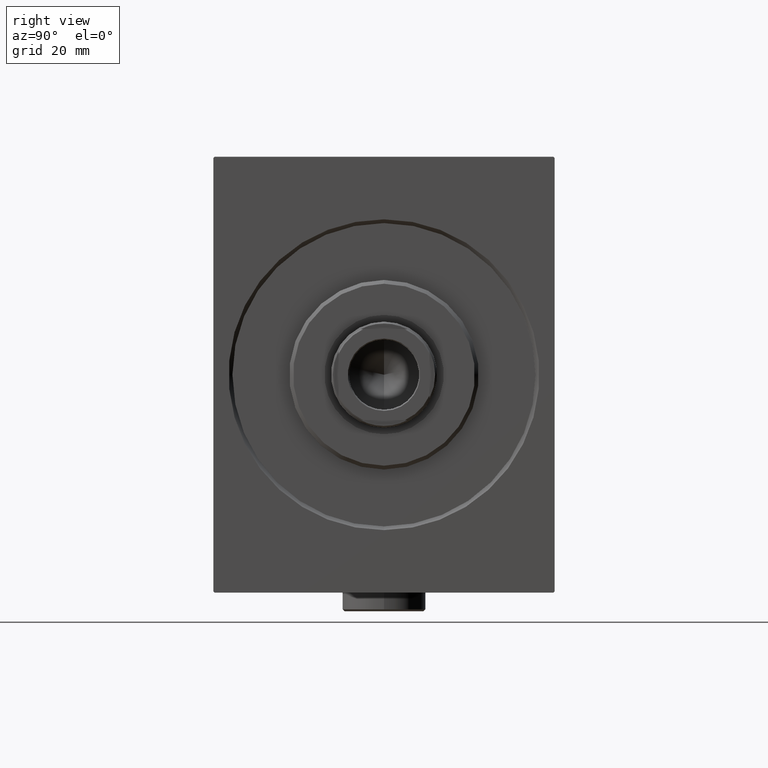
[diagram: clean part render]
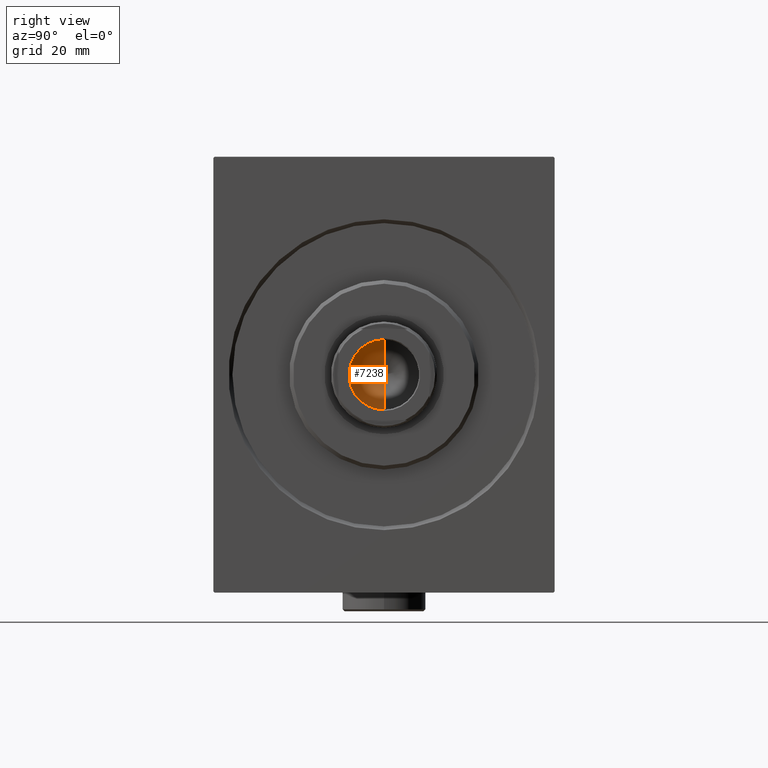
[diagram: same view with one face highlighted and labeled with its STEP entity id]
A machine part, right view. The second image highlights one B-rep face of the part: STEP entity #7238.
In plain terms, the highlighted conical surface has half-angle 59 deg.
Its self-contained STEP definition (entity closure, byte-faithful):
#970 = EDGE_CURVE ( 'NONE', #5464, #22446, #25014, .T. ) ;
#3323 = EDGE_CURVE ( 'NONE', #5464, #20763, #3812, .T. ) ;
#3812 = LINE ( 'NONE', #37891, #18380 ) ;
#5464 = VERTEX_POINT ( 'NONE', #30935 ) ;
#6535 = CIRCLE ( 'NONE', #10778, 9.249999999999994671 ) ;
#7104 = CONICAL_SURFACE ( 'NONE', #31992, 9.249999999999994671, 1.029744258676652535 ) ;
#7238 = ADVANCED_FACE ( 'NONE', ( #25486 ), #7104, .F. ) ;
#7996 = CARTESIAN_POINT ( 'NONE',  ( 9.249999999999994671, 0.000000000000000000, 79.00000000000001421 ) ) ;
#8524 = DIRECTION ( 'NONE',  ( -0.8571673007021113344, 1.049727191138617463E-16, 0.5150380749100558209 ) ) ;
#10778 = AXIS2_PLACEMENT_3D ( 'NONE', #29255, #18797, #12327 ) ;
#11691 = CARTESIAN_POINT ( 'NONE',  ( 0.000000000000000000, 0.000000000000000000, 79.00000000000001421 ) ) ;
#12327 = DIRECTION ( 'NONE',  ( 1.000000000000000000, 0.000000000000000000, 0.000000000000000000 ) ) ;
#14042 = DIRECTION ( 'NONE',  ( 0.8571673007021113344, 0.000000000000000000, 0.5150380749100558209 ) ) ;
#14859 = ORIENTED_EDGE ( 'NONE', *, *, #34767, .T. ) ;
#18380 = VECTOR ( 'NONE', #14042, 1000.000000000000000 ) ;
#18797 = DIRECTION ( 'NONE',  ( -0.000000000000000000, -0.000000000000000000, 1.000000000000000000 ) ) ;
#19055 = CARTESIAN_POINT ( 'NONE',  ( -9.249999999999994671, 1.132798289211300909E-15, 79.00000000000001421 ) ) ;
#20763 = VERTEX_POINT ( 'NONE', #7996 ) ;
#21873 = VECTOR ( 'NONE', #8524, 1000.000000000000000 ) ;
#22446 = VERTEX_POINT ( 'NONE', #19055 ) ;
#25014 = LINE ( 'NONE', #31893, #21873 ) ;
#25486 = FACE_OUTER_BOUND ( 'NONE', #33091, .T. ) ;
#29255 = CARTESIAN_POINT ( 'NONE',  ( 0.000000000000000000, 0.000000000000000000, 79.00000000000001421 ) ) ;
#30555 = ORIENTED_EDGE ( 'NONE', *, *, #3323, .F. ) ;
#30935 = CARTESIAN_POINT ( 'NONE',  ( -6.793016015247754405E-15, 0.000000000000000000, 73.44203927399506426 ) ) ;
#31893 = CARTESIAN_POINT ( 'NONE',  ( -9.249999999999994671, 1.132798289211300909E-15, 79.00000000000001421 ) ) ;
#31992 = AXIS2_PLACEMENT_3D ( 'NONE', #11691, #35073, #39080 ) ;
#33041 = ORIENTED_EDGE ( 'NONE', *, *, #970, .T. ) ;
#33091 = EDGE_LOOP ( 'NONE', ( #30555, #33041, #14859 ) ) ;
#34767 = EDGE_CURVE ( 'NONE', #22446, #20763, #6535, .T. ) ;
#35073 = DIRECTION ( 'NONE',  ( -0.000000000000000000, -0.000000000000000000, 1.000000000000000000 ) ) ;
#37891 = CARTESIAN_POINT ( 'NONE',  ( 9.249999999999994671, 0.000000000000000000, 79.00000000000001421 ) ) ;
#39080 = DIRECTION ( 'NONE',  ( 1.000000000000000000, 0.000000000000000000, 0.000000000000000000 ) ) ;